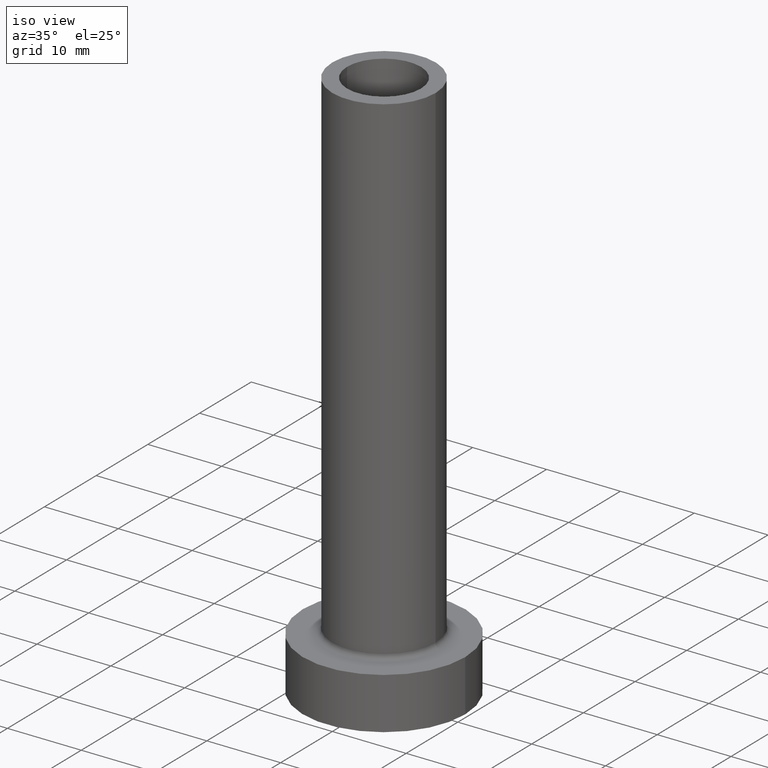
[diagram: clean part render]
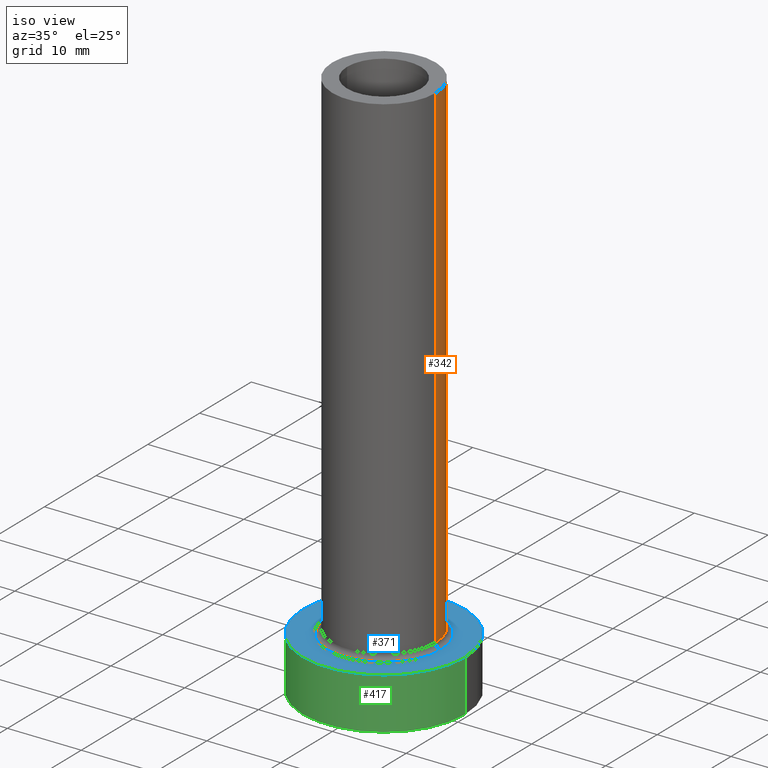
[diagram: same view with three faces highlighted in distinct colors, each labeled with its STEP entity id]
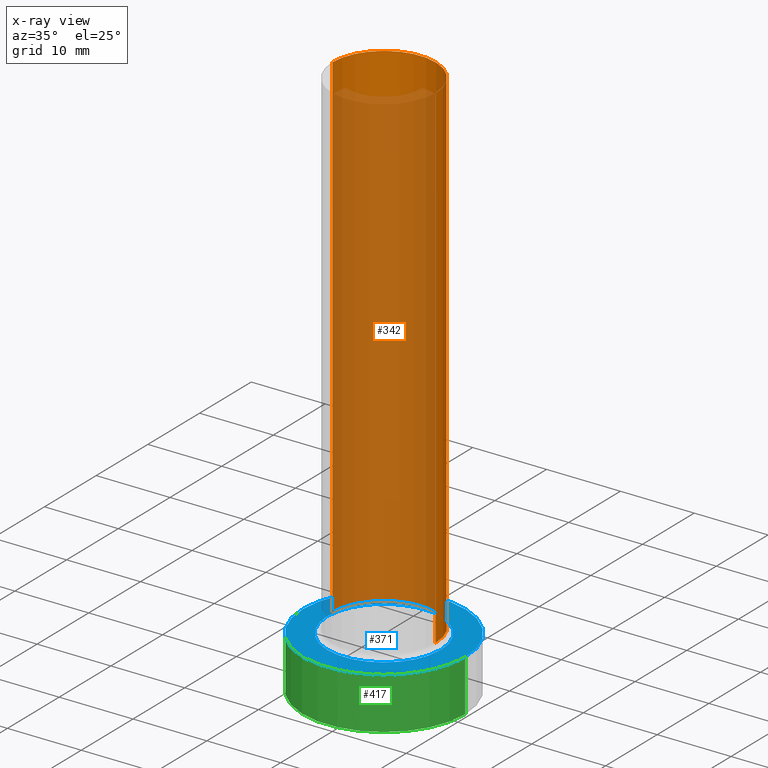
[diagram: x-ray of the same camera — body ghosted, the three highlighted faces saturated]
A machine part, iso view with three faces highlighted in distinct colors.
The next image is the same camera in x-ray (body ghosted, the three faces saturated) — at least one of them is partly hidden behind the body in this view.
Their STEP definitions:

[orange] entity #342 — the highlighted cylindrical surface (partial cylindrical patch) has radius 7 mm, axis along (-0, -0, -1).
#3 = CARTESIAN_POINT ( 'NONE',  ( -7.000000000000000888, 0.000000000000000000, 7.699999999999998401 ) ) ;
#26 = VERTEX_POINT ( 'NONE', #121 ) ;
#43 = CIRCLE ( 'NONE', #426, 7.000000000000000888 ) ;
#51 = CARTESIAN_POINT ( 'NONE',  ( -7.000000000000000888, 0.000000000000000000, 75.00000000000001421 ) ) ;
#55 = VECTOR ( 'NONE', #202, 1000.000000000000000 ) ;
#70 = EDGE_CURVE ( 'NONE', #443, #350, #245, .T. ) ;
#79 = DIRECTION ( 'NONE',  ( -1.000000000000000000, 0.000000000000000000, 0.000000000000000000 ) ) ;
#106 = CARTESIAN_POINT ( 'NONE',  ( 7.000000000000000888, 8.572527594031474176E-16, 75.00000000000001421 ) ) ;
#121 = CARTESIAN_POINT ( 'NONE',  ( 7.000000000000000888, 8.572527594031474176E-16, 7.699999999999998401 ) ) ;
#145 = CARTESIAN_POINT ( 'NONE',  ( 7.000000000000000888, 8.572527594031474176E-16, 75.00000000000001421 ) ) ;
#172 = CARTESIAN_POINT ( 'NONE',  ( 0.000000000000000000, 0.000000000000000000, 7.699999999999998401 ) ) ;
#180 = DIRECTION ( 'NONE',  ( 1.000000000000000000, 0.000000000000000000, 0.000000000000000000 ) ) ;
#181 = VECTOR ( 'NONE', #187, 1000.000000000000000 ) ;
#187 = DIRECTION ( 'NONE',  ( -0.000000000000000000, -0.000000000000000000, -1.000000000000000000 ) ) ;
#196 = AXIS2_PLACEMENT_3D ( 'NONE', #283, #288, #79 ) ;
#202 = DIRECTION ( 'NONE',  ( -0.000000000000000000, -0.000000000000000000, -1.000000000000000000 ) ) ;
#212 = EDGE_LOOP ( 'NONE', ( #234, #251, #242, #241 ) ) ;
#216 = FACE_OUTER_BOUND ( 'NONE', #212, .T. ) ;
#221 = CYLINDRICAL_SURFACE ( 'NONE', #196, 7.000000000000000888 ) ;
#230 = EDGE_CURVE ( 'NONE', #353, #26, #308, .T. ) ;
#234 = ORIENTED_EDGE ( 'NONE', *, *, #374, .F. ) ;
#241 = ORIENTED_EDGE ( 'NONE', *, *, #70, .F. ) ;
#242 = ORIENTED_EDGE ( 'NONE', *, *, #278, .T. ) ;
#243 = DIRECTION ( 'NONE',  ( 0.000000000000000000, 0.000000000000000000, 1.000000000000000000 ) ) ;
#245 = LINE ( 'NONE', #51, #181 ) ;
#249 = CIRCLE ( 'NONE', #343, 7.000000000000000888 ) ;
#251 = ORIENTED_EDGE ( 'NONE', *, *, #230, .T. ) ;
#252 = DIRECTION ( 'NONE',  ( 0.000000000000000000, 0.000000000000000000, 1.000000000000000000 ) ) ;
#277 = DIRECTION ( 'NONE',  ( 1.000000000000000000, 0.000000000000000000, 0.000000000000000000 ) ) ;
#278 = EDGE_CURVE ( 'NONE', #26, #350, #43, .T. ) ;
#283 = CARTESIAN_POINT ( 'NONE',  ( 0.000000000000000000, 0.000000000000000000, 75.00000000000001421 ) ) ;
#288 = DIRECTION ( 'NONE',  ( -0.000000000000000000, -0.000000000000000000, -1.000000000000000000 ) ) ;
#308 = LINE ( 'NONE', #106, #55 ) ;
#342 = ADVANCED_FACE ( 'NONE', ( #216 ), #221, .T. ) ;
#343 = AXIS2_PLACEMENT_3D ( 'NONE', #401, #252, #180 ) ;
#350 = VERTEX_POINT ( 'NONE', #3 ) ;
#353 = VERTEX_POINT ( 'NONE', #145 ) ;
#363 = CARTESIAN_POINT ( 'NONE',  ( -7.000000000000000888, 0.000000000000000000, 75.00000000000001421 ) ) ;
#374 = EDGE_CURVE ( 'NONE', #353, #443, #249, .T. ) ;
#401 = CARTESIAN_POINT ( 'NONE',  ( 0.000000000000000000, 0.000000000000000000, 75.00000000000001421 ) ) ;
#426 = AXIS2_PLACEMENT_3D ( 'NONE', #172, #243, #277 ) ;
#443 = VERTEX_POINT ( 'NONE', #363 ) ;

[blue] entity #371 — the highlighted planar face has unit normal (0, 0, 1).
#2 = CARTESIAN_POINT ( 'NONE',  ( 7.700000000000001066, 0.000000000000000000, 6.999999999999999112 ) ) ;
#23 = EDGE_CURVE ( 'NONE', #390, #170, #29, .T. ) ;
#29 = CIRCLE ( 'NONE', #290, 11.00000000000000000 ) ;
#31 = CARTESIAN_POINT ( 'NONE',  ( 0.000000000000000000, 0.000000000000000000, 7.000000000000000000 ) ) ;
#33 = EDGE_CURVE ( 'NONE', #410, #381, #266, .T. ) ;
#35 = CARTESIAN_POINT ( 'NONE',  ( 0.000000000000000000, 0.000000000000000000, 7.000000000000000000 ) ) ;
#38 = DIRECTION ( 'NONE',  ( -0.000000000000000000, -0.000000000000000000, -1.000000000000000000 ) ) ;
#40 = PLANE ( 'NONE',  #444 ) ;
#88 = CARTESIAN_POINT ( 'NONE',  ( 0.000000000000000000, 0.000000000000000000, 7.000000000000000000 ) ) ;
#107 = DIRECTION ( 'NONE',  ( 1.000000000000000000, 0.000000000000000000, 0.000000000000000000 ) ) ;
#116 = CARTESIAN_POINT ( 'NONE',  ( 0.000000000000000000, 0.000000000000000000, 7.000000000000000000 ) ) ;
#134 = DIRECTION ( 'NONE',  ( 1.000000000000000000, 0.000000000000000000, 0.000000000000000000 ) ) ;
#162 = AXIS2_PLACEMENT_3D ( 'NONE', #31, #387, #107 ) ;
#164 = ORIENTED_EDGE ( 'NONE', *, *, #264, .T. ) ;
#168 = DIRECTION ( 'NONE',  ( 1.000000000000000000, 0.000000000000000000, 0.000000000000000000 ) ) ;
#170 = VERTEX_POINT ( 'NONE', #403 ) ;
#198 = EDGE_LOOP ( 'NONE', ( #379, #206 ) ) ;
#204 = ORIENTED_EDGE ( 'NONE', *, *, #23, .T. ) ;
#206 = ORIENTED_EDGE ( 'NONE', *, *, #33, .T. ) ;
#219 = EDGE_CURVE ( 'NONE', #381, #410, #304, .T. ) ;
#232 = AXIS2_PLACEMENT_3D ( 'NONE', #35, #236, #134 ) ;
#236 = DIRECTION ( 'NONE',  ( 0.000000000000000000, 0.000000000000000000, 1.000000000000000000 ) ) ;
#264 = EDGE_CURVE ( 'NONE', #170, #390, #267, .T. ) ;
#266 = CIRCLE ( 'NONE', #162, 7.700000000000001066 ) ;
#267 = CIRCLE ( 'NONE', #232, 11.00000000000000000 ) ;
#271 = CARTESIAN_POINT ( 'NONE',  ( 0.000000000000000000, 0.000000000000000000, 7.000000000000000000 ) ) ;
#272 = EDGE_LOOP ( 'NONE', ( #204, #164 ) ) ;
#286 = DIRECTION ( 'NONE',  ( 0.000000000000000000, 0.000000000000000000, 1.000000000000000000 ) ) ;
#290 = AXIS2_PLACEMENT_3D ( 'NONE', #88, #357, #461 ) ;
#292 = FACE_OUTER_BOUND ( 'NONE', #272, .T. ) ;
#304 = CIRCLE ( 'NONE', #453, 7.700000000000001066 ) ;
#324 = FACE_BOUND ( 'NONE', #198, .T. ) ;
#357 = DIRECTION ( 'NONE',  ( 0.000000000000000000, 0.000000000000000000, 1.000000000000000000 ) ) ;
#371 = ADVANCED_FACE ( 'NONE', ( #324, #292 ), #40, .T. ) ;
#379 = ORIENTED_EDGE ( 'NONE', *, *, #219, .T. ) ;
#381 = VERTEX_POINT ( 'NONE', #2 ) ;
#387 = DIRECTION ( 'NONE',  ( -0.000000000000000000, -0.000000000000000000, -1.000000000000000000 ) ) ;
#390 = VERTEX_POINT ( 'NONE', #434 ) ;
#403 = CARTESIAN_POINT ( 'NONE',  ( 11.00000000000000000, 1.347111479062088405E-15, 7.000000000000000000 ) ) ;
#410 = VERTEX_POINT ( 'NONE', #428 ) ;
#428 = CARTESIAN_POINT ( 'NONE',  ( -7.700000000000001066, 9.429780353434621002E-16, 6.999999999999999112 ) ) ;
#430 = DIRECTION ( 'NONE',  ( 1.000000000000000000, 0.000000000000000000, -0.000000000000000000 ) ) ;
#434 = CARTESIAN_POINT ( 'NONE',  ( -11.00000000000000000, 0.000000000000000000, 7.000000000000000000 ) ) ;
#444 = AXIS2_PLACEMENT_3D ( 'NONE', #116, #286, #430 ) ;
#453 = AXIS2_PLACEMENT_3D ( 'NONE', #271, #38, #168 ) ;
#461 = DIRECTION ( 'NONE',  ( 1.000000000000000000, 0.000000000000000000, 0.000000000000000000 ) ) ;

[green] entity #417 — the highlighted cylindrical surface (partial cylindrical patch) has radius 11 mm, axis along (-0, -0, -1).
#4 = DIRECTION ( 'NONE',  ( -0.000000000000000000, -0.000000000000000000, -1.000000000000000000 ) ) ;
#5 = VECTOR ( 'NONE', #144, 1000.000000000000000 ) ;
#9 = CARTESIAN_POINT ( 'NONE',  ( -11.00000000000000000, 0.000000000000000000, 7.000000000000000000 ) ) ;
#23 = EDGE_CURVE ( 'NONE', #390, #170, #29, .T. ) ;
#24 = VERTEX_POINT ( 'NONE', #81 ) ;
#29 = CIRCLE ( 'NONE', #290, 11.00000000000000000 ) ;
#54 = EDGE_CURVE ( 'NONE', #390, #24, #260, .T. ) ;
#59 = ORIENTED_EDGE ( 'NONE', *, *, #118, .F. ) ;
#81 = CARTESIAN_POINT ( 'NONE',  ( -11.00000000000000000, 0.000000000000000000, 0.000000000000000000 ) ) ;
#82 = DIRECTION ( 'NONE',  ( 1.000000000000000000, 0.000000000000000000, 0.000000000000000000 ) ) ;
#88 = CARTESIAN_POINT ( 'NONE',  ( 0.000000000000000000, 0.000000000000000000, 7.000000000000000000 ) ) ;
#118 = EDGE_CURVE ( 'NONE', #170, #247, #333, .T. ) ;
#144 = DIRECTION ( 'NONE',  ( -0.000000000000000000, -0.000000000000000000, -1.000000000000000000 ) ) ;
#155 = CIRCLE ( 'NONE', #354, 11.00000000000000000 ) ;
#166 = ORIENTED_EDGE ( 'NONE', *, *, #23, .F. ) ;
#170 = VERTEX_POINT ( 'NONE', #403 ) ;
#178 = CYLINDRICAL_SURFACE ( 'NONE', #398, 11.00000000000000000 ) ;
#247 = VERTEX_POINT ( 'NONE', #452 ) ;
#254 = DIRECTION ( 'NONE',  ( -0.000000000000000000, -0.000000000000000000, -1.000000000000000000 ) ) ;
#258 = CARTESIAN_POINT ( 'NONE',  ( 0.000000000000000000, 0.000000000000000000, 7.000000000000000000 ) ) ;
#259 = FACE_OUTER_BOUND ( 'NONE', #451, .T. ) ;
#260 = LINE ( 'NONE', #9, #5 ) ;
#290 = AXIS2_PLACEMENT_3D ( 'NONE', #88, #357, #461 ) ;
#298 = VECTOR ( 'NONE', #254, 1000.000000000000000 ) ;
#305 = ORIENTED_EDGE ( 'NONE', *, *, #408, .T. ) ;
#321 = CARTESIAN_POINT ( 'NONE',  ( 11.00000000000000000, 1.347111479062088405E-15, 7.000000000000000000 ) ) ;
#327 = DIRECTION ( 'NONE',  ( -1.000000000000000000, 0.000000000000000000, 0.000000000000000000 ) ) ;
#333 = LINE ( 'NONE', #321, #298 ) ;
#354 = AXIS2_PLACEMENT_3D ( 'NONE', #399, #396, #82 ) ;
#357 = DIRECTION ( 'NONE',  ( 0.000000000000000000, 0.000000000000000000, 1.000000000000000000 ) ) ;
#390 = VERTEX_POINT ( 'NONE', #434 ) ;
#396 = DIRECTION ( 'NONE',  ( 0.000000000000000000, 0.000000000000000000, 1.000000000000000000 ) ) ;
#398 = AXIS2_PLACEMENT_3D ( 'NONE', #258, #4, #327 ) ;
#399 = CARTESIAN_POINT ( 'NONE',  ( 0.000000000000000000, 0.000000000000000000, 0.000000000000000000 ) ) ;
#403 = CARTESIAN_POINT ( 'NONE',  ( 11.00000000000000000, 1.347111479062088405E-15, 7.000000000000000000 ) ) ;
#408 = EDGE_CURVE ( 'NONE', #24, #247, #155, .T. ) ;
#417 = ADVANCED_FACE ( 'NONE', ( #259 ), #178, .T. ) ;
#434 = CARTESIAN_POINT ( 'NONE',  ( -11.00000000000000000, 0.000000000000000000, 7.000000000000000000 ) ) ;
#442 = ORIENTED_EDGE ( 'NONE', *, *, #54, .T. ) ;
#451 = EDGE_LOOP ( 'NONE', ( #59, #166, #442, #305 ) ) ;
#452 = CARTESIAN_POINT ( 'NONE',  ( 11.00000000000000000, 1.347111479062088405E-15, 0.000000000000000000 ) ) ;
#461 = DIRECTION ( 'NONE',  ( 1.000000000000000000, 0.000000000000000000, 0.000000000000000000 ) ) ;